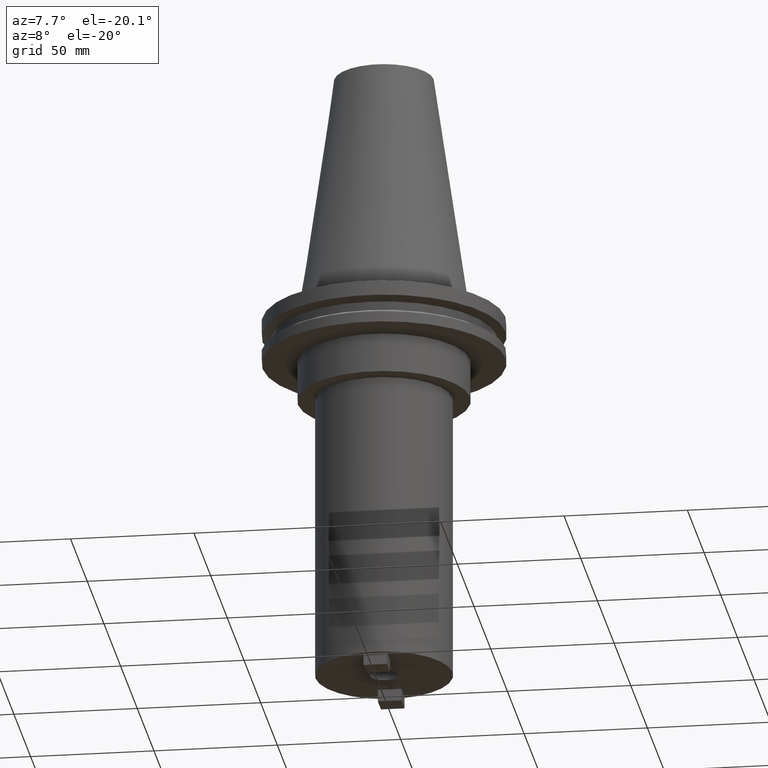
[diagram: clean part render]
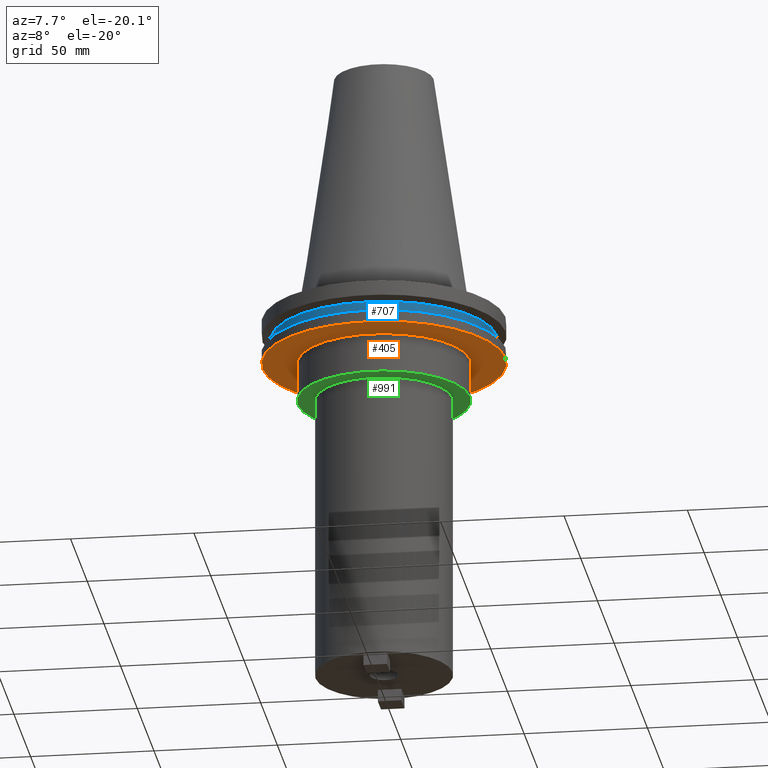
[diagram: same view with three faces highlighted in distinct colors, each labeled with its STEP entity id]
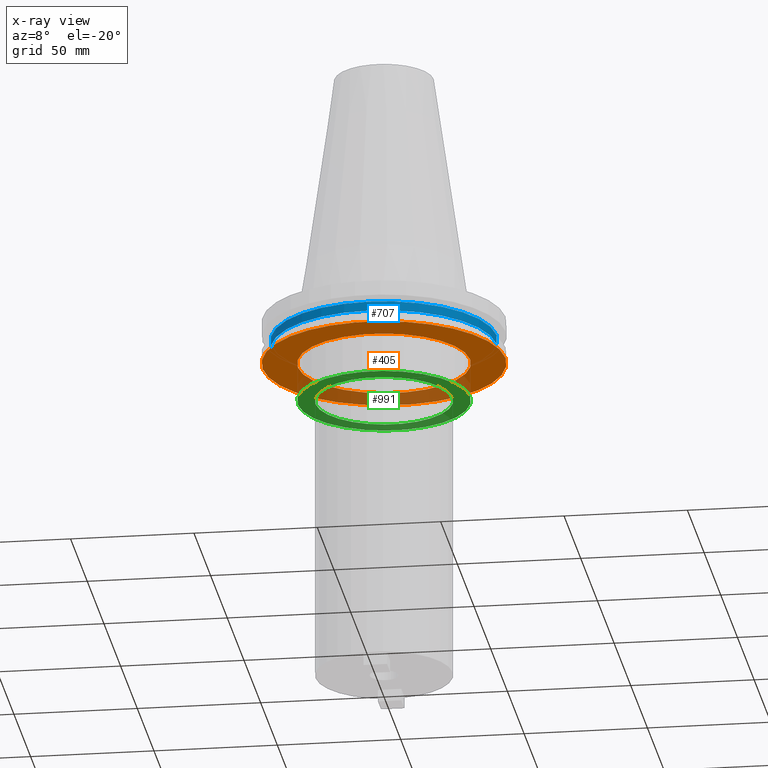
[diagram: x-ray of the same camera — body ghosted, the three highlighted faces saturated]
A machine part, auxiliary view with three faces highlighted in distinct colors.
The next image is the same camera in x-ray (body ghosted, the three faces saturated) — at least one of them is partly hidden behind the body in this view.
Their STEP definitions:

[orange] entity #405 — the highlighted planar face has unit normal (0, -0, 1).
#23 = CIRCLE ( 'NONE', #451, 34.92499999999999716 ) ;
#26 = VERTEX_POINT ( 'NONE', #225 ) ;
#63 = AXIS2_PLACEMENT_3D ( 'NONE', #920, #387, #323 ) ;
#163 = CARTESIAN_POINT ( 'NONE',  ( -34.92499999999999716, 4.277078946022130887E-15, -19.04999999999999716 ) ) ;
#195 = EDGE_CURVE ( 'NONE', #386, #782, #997, .T. ) ;
#225 = CARTESIAN_POINT ( 'NONE',  ( 34.92499999999999716, 0.000000000000000000, -19.04999999999999716 ) ) ;
#286 = CARTESIAN_POINT ( 'NONE',  ( 0.000000000000000000, 49.21499999999998920, -19.04999999999999716 ) ) ;
#301 = DIRECTION ( 'NONE',  ( -0.000000000000000000, -0.000000000000000000, 1.000000000000000000 ) ) ;
#323 = DIRECTION ( 'NONE',  ( 1.000000000000000000, 0.000000000000000000, 0.000000000000000000 ) ) ;
#352 = CARTESIAN_POINT ( 'NONE',  ( -49.21499999999998920, 6.027099222003697037E-15, -19.04999999999999716 ) ) ;
#386 = VERTEX_POINT ( 'NONE', #352 ) ;
#387 = DIRECTION ( 'NONE',  ( -0.000000000000000000, -0.000000000000000000, 1.000000000000000000 ) ) ;
#395 = DIRECTION ( 'NONE',  ( 1.000000000000000000, 0.000000000000000000, 0.000000000000000000 ) ) ;
#405 = ADVANCED_FACE ( 'NONE', ( #1042, #538 ), #880, .F. ) ;
#451 = AXIS2_PLACEMENT_3D ( 'NONE', #476, #301, #644 ) ;
#468 = AXIS2_PLACEMENT_3D ( 'NONE', #918, #862, #689 ) ;
#476 = CARTESIAN_POINT ( 'NONE',  ( 0.000000000000000000, 0.000000000000000000, -19.04999999999999716 ) ) ;
#478 = EDGE_LOOP ( 'NONE', ( #1043, #900 ) ) ;
#491 = ORIENTED_EDGE ( 'NONE', *, *, #852, .T. ) ;
#538 = FACE_BOUND ( 'NONE', #890, .T. ) ;
#599 = EDGE_CURVE ( 'NONE', #26, #910, #948, .T. ) ;
#644 = DIRECTION ( 'NONE',  ( 1.000000000000000000, 0.000000000000000000, 0.000000000000000000 ) ) ;
#660 = CARTESIAN_POINT ( 'NONE',  ( 49.21499999999998920, 0.000000000000000000, -19.04999999999999716 ) ) ;
#673 = DIRECTION ( 'NONE',  ( -0.000000000000000000, -0.000000000000000000, 1.000000000000000000 ) ) ;
#689 = DIRECTION ( 'NONE',  ( 1.000000000000000000, 0.000000000000000000, 0.000000000000000000 ) ) ;
#751 = DIRECTION ( 'NONE',  ( 1.000000000000000000, 0.000000000000000000, 0.000000000000000000 ) ) ;
#753 = AXIS2_PLACEMENT_3D ( 'NONE', #286, #1081, #751 ) ;
#782 = VERTEX_POINT ( 'NONE', #660 ) ;
#832 = CIRCLE ( 'NONE', #63, 49.21499999999998920 ) ;
#841 = EDGE_CURVE ( 'NONE', #782, #386, #832, .T. ) ;
#852 = EDGE_CURVE ( 'NONE', #910, #26, #23, .T. ) ;
#862 = DIRECTION ( 'NONE',  ( -0.000000000000000000, -0.000000000000000000, 1.000000000000000000 ) ) ;
#880 = PLANE ( 'NONE',  #753 ) ;
#890 = EDGE_LOOP ( 'NONE', ( #960, #491 ) ) ;
#900 = ORIENTED_EDGE ( 'NONE', *, *, #195, .F. ) ;
#910 = VERTEX_POINT ( 'NONE', #163 ) ;
#918 = CARTESIAN_POINT ( 'NONE',  ( 0.000000000000000000, 0.000000000000000000, -19.04999999999999716 ) ) ;
#920 = CARTESIAN_POINT ( 'NONE',  ( 0.000000000000000000, 0.000000000000000000, -19.04999999999999716 ) ) ;
#948 = CIRCLE ( 'NONE', #468, 34.92499999999999716 ) ;
#960 = ORIENTED_EDGE ( 'NONE', *, *, #599, .T. ) ;
#997 = CIRCLE ( 'NONE', #1012, 49.21499999999998920 ) ;
#1012 = AXIS2_PLACEMENT_3D ( 'NONE', #1014, #673, #395 ) ;
#1014 = CARTESIAN_POINT ( 'NONE',  ( 0.000000000000000000, 0.000000000000000000, -19.04999999999999716 ) ) ;
#1042 = FACE_OUTER_BOUND ( 'NONE', #478, .T. ) ;
#1043 = ORIENTED_EDGE ( 'NONE', *, *, #841, .F. ) ;
#1081 = DIRECTION ( 'NONE',  ( 0.000000000000000000, -0.000000000000000000, 1.000000000000000000 ) ) ;

[blue] entity #707 — the highlighted cylindrical surface (partial cylindrical patch) has radius 45.645 mm, axis along (-0, -0, 1).
#55 = DIRECTION ( 'NONE',  ( -0.000000000000000000, -0.000000000000000000, 1.000000000000000000 ) ) ;
#101 = VECTOR ( 'NONE', #791, 1000.000000000000000 ) ;
#111 = DIRECTION ( 'NONE',  ( -0.000000000000000000, -0.000000000000000000, 1.000000000000000000 ) ) ;
#122 = CYLINDRICAL_SURFACE ( 'NONE', #1049, 45.64500000000000313 ) ;
#134 = CARTESIAN_POINT ( 'NONE',  ( 0.000000000000000000, 0.000000000000000000, 101.5999999999999943 ) ) ;
#176 = AXIS2_PLACEMENT_3D ( 'NONE', #281, #625, #957 ) ;
#188 = CARTESIAN_POINT ( 'NONE',  ( 0.000000000000000000, 0.000000000000000000, -13.05499999999999794 ) ) ;
#237 = ORIENTED_EDGE ( 'NONE', *, *, #385, .F. ) ;
#243 = VERTEX_POINT ( 'NONE', #335 ) ;
#281 = CARTESIAN_POINT ( 'NONE',  ( 0.000000000000000000, 0.000000000000000000, -9.204999999999991189 ) ) ;
#292 = FACE_OUTER_BOUND ( 'NONE', #1069, .T. ) ;
#294 = AXIS2_PLACEMENT_3D ( 'NONE', #188, #404, #522 ) ;
#299 = ORIENTED_EDGE ( 'NONE', *, *, #974, .T. ) ;
#328 = LINE ( 'NONE', #358, #966 ) ;
#335 = CARTESIAN_POINT ( 'NONE',  ( -45.64500000000000313, 5.589900314708094957E-15, -13.05499999999999794 ) ) ;
#339 = LINE ( 'NONE', #1024, #101 ) ;
#358 = CARTESIAN_POINT ( 'NONE',  ( 45.64500000000000313, 0.000000000000000000, 101.5999999999999943 ) ) ;
#367 = DIRECTION ( 'NONE',  ( 1.000000000000000000, 0.000000000000000000, 0.000000000000000000 ) ) ;
#382 = VERTEX_POINT ( 'NONE', #1019 ) ;
#385 = EDGE_CURVE ( 'NONE', #243, #715, #339, .T. ) ;
#393 = EDGE_CURVE ( 'NONE', #715, #1000, #868, .T. ) ;
#404 = DIRECTION ( 'NONE',  ( -0.000000000000000000, -0.000000000000000000, 1.000000000000000000 ) ) ;
#522 = DIRECTION ( 'NONE',  ( 1.000000000000000000, 0.000000000000000000, 0.000000000000000000 ) ) ;
#609 = EDGE_CURVE ( 'NONE', #243, #382, #967, .T. ) ;
#625 = DIRECTION ( 'NONE',  ( -0.000000000000000000, -0.000000000000000000, 1.000000000000000000 ) ) ;
#707 = ADVANCED_FACE ( 'NONE', ( #292 ), #122, .T. ) ;
#715 = VERTEX_POINT ( 'NONE', #718 ) ;
#717 = ORIENTED_EDGE ( 'NONE', *, *, #609, .T. ) ;
#718 = CARTESIAN_POINT ( 'NONE',  ( -45.64500000000000313, 5.589900314708094957E-15, -9.204999999999991189 ) ) ;
#791 = DIRECTION ( 'NONE',  ( -0.000000000000000000, -0.000000000000000000, 1.000000000000000000 ) ) ;
#868 = CIRCLE ( 'NONE', #176, 45.64500000000000313 ) ;
#950 = ORIENTED_EDGE ( 'NONE', *, *, #393, .F. ) ;
#951 = CARTESIAN_POINT ( 'NONE',  ( 45.64500000000000313, 0.000000000000000000, -9.204999999999991189 ) ) ;
#957 = DIRECTION ( 'NONE',  ( 1.000000000000000000, 0.000000000000000000, 0.000000000000000000 ) ) ;
#966 = VECTOR ( 'NONE', #111, 1000.000000000000000 ) ;
#967 = CIRCLE ( 'NONE', #294, 45.64500000000000313 ) ;
#974 = EDGE_CURVE ( 'NONE', #382, #1000, #328, .T. ) ;
#1000 = VERTEX_POINT ( 'NONE', #951 ) ;
#1019 = CARTESIAN_POINT ( 'NONE',  ( 45.64500000000000313, 0.000000000000000000, -13.05499999999999794 ) ) ;
#1024 = CARTESIAN_POINT ( 'NONE',  ( -45.64500000000000313, 5.589900314708094957E-15, 101.5999999999999943 ) ) ;
#1049 = AXIS2_PLACEMENT_3D ( 'NONE', #134, #55, #367 ) ;
#1069 = EDGE_LOOP ( 'NONE', ( #237, #717, #299, #950 ) ) ;

[green] entity #991 — the highlighted planar face has unit normal (0, -0, 1).
#17 = DIRECTION ( 'NONE',  ( 1.000000000000000000, 0.000000000000000000, 0.000000000000000000 ) ) ;
#33 = ORIENTED_EDGE ( 'NONE', *, *, #370, .F. ) ;
#110 = AXIS2_PLACEMENT_3D ( 'NONE', #528, #783, #712 ) ;
#113 = CARTESIAN_POINT ( 'NONE',  ( 0.000000000000000000, 0.000000000000000000, -35.04999999999999716 ) ) ;
#124 = EDGE_CURVE ( 'NONE', #773, #1072, #734, .T. ) ;
#152 = VERTEX_POINT ( 'NONE', #760 ) ;
#182 = CARTESIAN_POINT ( 'NONE',  ( 0.000000000000000000, 0.000000000000000000, -35.04999999999999716 ) ) ;
#183 = EDGE_LOOP ( 'NONE', ( #371, #378 ) ) ;
#264 = AXIS2_PLACEMENT_3D ( 'NONE', #113, #318, #17 ) ;
#318 = DIRECTION ( 'NONE',  ( 0.000000000000000000, 0.000000000000000000, -1.000000000000000000 ) ) ;
#361 = VERTEX_POINT ( 'NONE', #531 ) ;
#363 = CARTESIAN_POINT ( 'NONE',  ( 0.000000000000000000, 0.000000000000000000, -35.04999999999999716 ) ) ;
#370 = EDGE_CURVE ( 'NONE', #361, #152, #582, .T. ) ;
#371 = ORIENTED_EDGE ( 'NONE', *, *, #124, .F. ) ;
#378 = ORIENTED_EDGE ( 'NONE', *, *, #1086, .F. ) ;
#411 = EDGE_CURVE ( 'NONE', #152, #361, #457, .T. ) ;
#428 = DIRECTION ( 'NONE',  ( 0.000000000000000000, 0.000000000000000000, -1.000000000000000000 ) ) ;
#431 = FACE_BOUND ( 'NONE', #509, .T. ) ;
#457 = CIRCLE ( 'NONE', #264, 27.80030000000000001 ) ;
#509 = EDGE_LOOP ( 'NONE', ( #1026, #33 ) ) ;
#528 = CARTESIAN_POINT ( 'NONE',  ( 0.000000000000000000, 34.92499999999999716, -35.04999999999999716 ) ) ;
#531 = CARTESIAN_POINT ( 'NONE',  ( -27.80030000000000001, 3.404554841033616429E-15, -35.04999999999999716 ) ) ;
#563 = AXIS2_PLACEMENT_3D ( 'NONE', #182, #428, #779 ) ;
#582 = CIRCLE ( 'NONE', #563, 27.80030000000000001 ) ;
#616 = FACE_OUTER_BOUND ( 'NONE', #183, .T. ) ;
#675 = CIRCLE ( 'NONE', #704, 34.92499999999999716 ) ;
#704 = AXIS2_PLACEMENT_3D ( 'NONE', #363, #716, #1053 ) ;
#712 = DIRECTION ( 'NONE',  ( 1.000000000000000000, 0.000000000000000000, 0.000000000000000000 ) ) ;
#716 = DIRECTION ( 'NONE',  ( -0.000000000000000000, -0.000000000000000000, 1.000000000000000000 ) ) ;
#734 = CIRCLE ( 'NONE', #803, 34.92499999999999716 ) ;
#748 = CARTESIAN_POINT ( 'NONE',  ( 34.92499999999999716, 0.000000000000000000, -35.04999999999999716 ) ) ;
#756 = DIRECTION ( 'NONE',  ( -0.000000000000000000, -0.000000000000000000, 1.000000000000000000 ) ) ;
#760 = CARTESIAN_POINT ( 'NONE',  ( 27.80030000000000001, 0.000000000000000000, -35.04999999999999716 ) ) ;
#773 = VERTEX_POINT ( 'NONE', #748 ) ;
#779 = DIRECTION ( 'NONE',  ( 1.000000000000000000, 0.000000000000000000, 0.000000000000000000 ) ) ;
#783 = DIRECTION ( 'NONE',  ( 0.000000000000000000, -0.000000000000000000, 1.000000000000000000 ) ) ;
#803 = AXIS2_PLACEMENT_3D ( 'NONE', #917, #756, #1089 ) ;
#872 = PLANE ( 'NONE',  #110 ) ;
#917 = CARTESIAN_POINT ( 'NONE',  ( 0.000000000000000000, 0.000000000000000000, -35.04999999999999716 ) ) ;
#968 = CARTESIAN_POINT ( 'NONE',  ( -34.92499999999999716, 4.277078946022130887E-15, -35.04999999999999716 ) ) ;
#991 = ADVANCED_FACE ( 'NONE', ( #616, #431 ), #872, .F. ) ;
#1026 = ORIENTED_EDGE ( 'NONE', *, *, #411, .F. ) ;
#1053 = DIRECTION ( 'NONE',  ( 1.000000000000000000, 0.000000000000000000, 0.000000000000000000 ) ) ;
#1072 = VERTEX_POINT ( 'NONE', #968 ) ;
#1086 = EDGE_CURVE ( 'NONE', #1072, #773, #675, .T. ) ;
#1089 = DIRECTION ( 'NONE',  ( 1.000000000000000000, 0.000000000000000000, 0.000000000000000000 ) ) ;